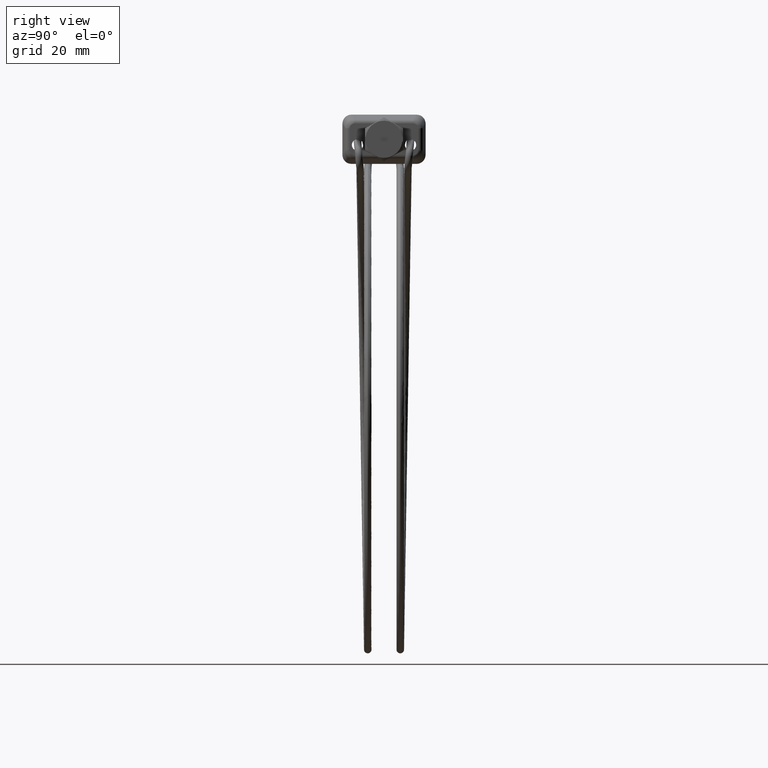
[diagram: clean part render]
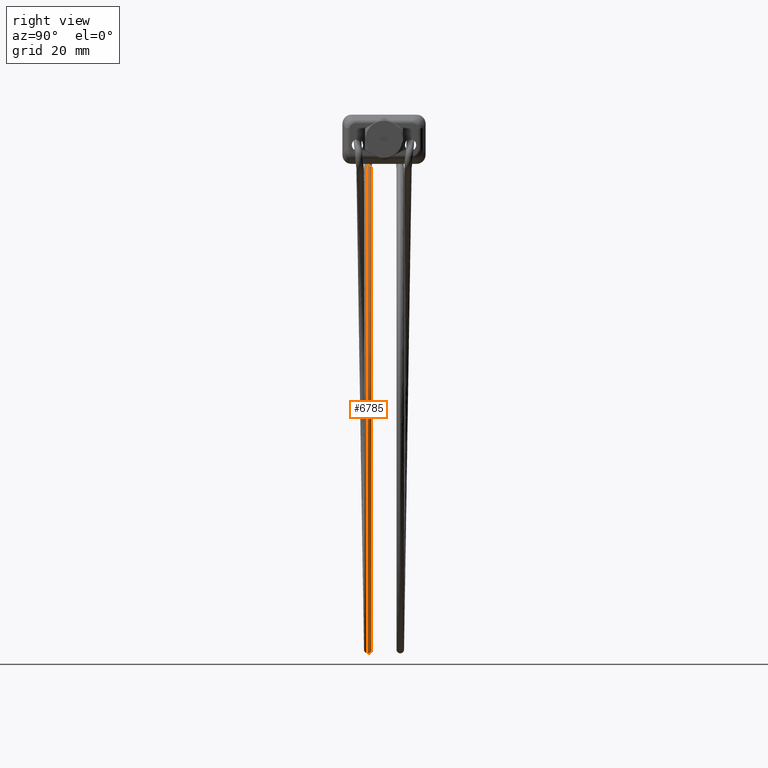
[diagram: same view with one face highlighted and labeled with its STEP entity id]
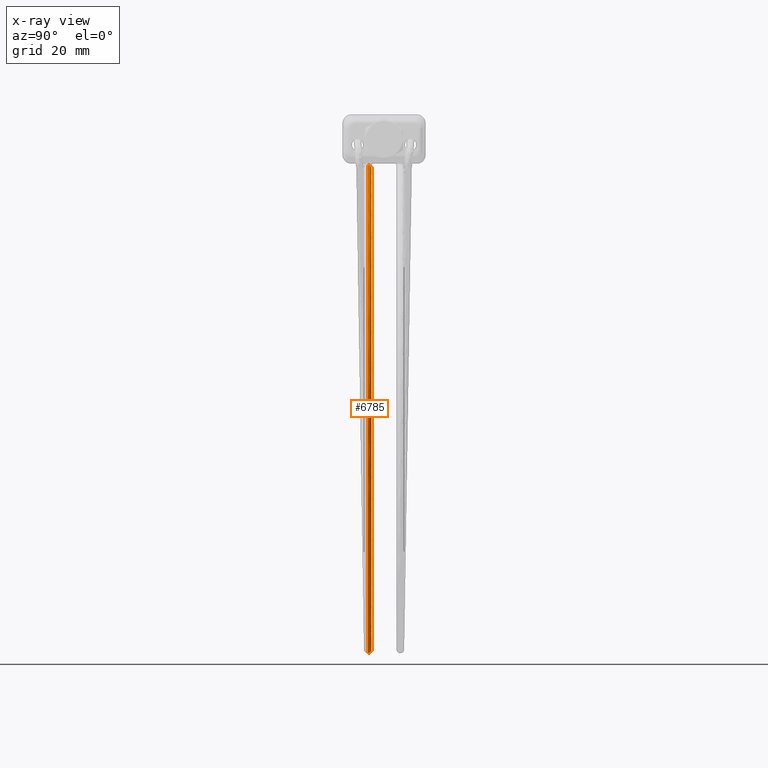
[diagram: x-ray of the same camera — body ghosted, the highlighted face saturated]
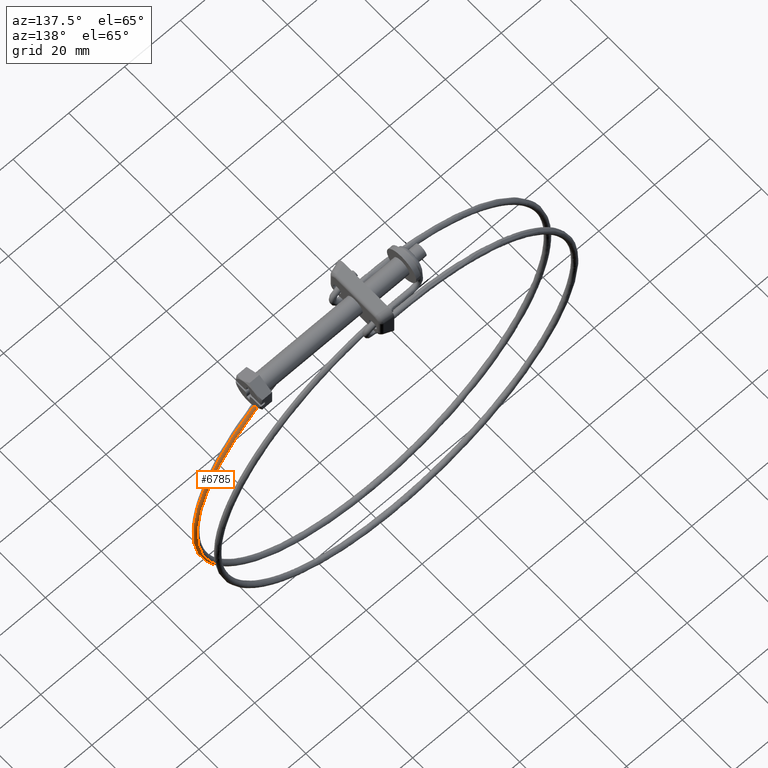
[diagram: same view with one face highlighted and labeled with its STEP entity id]
A machine part, right view. The second image highlights one B-rep face of the part: STEP entity #6785.
The next image is the same camera in x-ray: the body ghosted, the highlighted face saturated — about 0% of this face is hidden behind the body in this view.
A second angle (auxiliary view) of the same face is appended — the face is thin or edge-on in the first view.
In plain terms, the highlighted face is a freeform B-spline surface patch.
Its self-contained STEP definition (entity closure, byte-faithful):
#4858=CARTESIAN_POINT('',(-44.649999888239272,-4.300002000000000,-6.850001000000015));
#4859=VERTEX_POINT('',#4858);
#4875=CARTESIAN_POINT('',(-44.649999960482852,-3.364492663809099,-7.496699030150335));
#4876=VERTEX_POINT('',#4875);
#4877=CARTESIAN_POINT('',(-44.649999960482852,-3.364492663809098,-7.496699030150335));
#4878=CARTESIAN_POINT('',(-44.649999888267224,-3.608722925836405,-6.850001000000007));
#4879=CARTESIAN_POINT('',(-44.649999888239272,-4.300002000000000,-6.850001000000015));
#4887=(BOUNDED_CURVE()B_SPLINE_CURVE(2,(#4877,#4878,#4879),.UNSPECIFIED.,.F.,.U.)B_SPLINE_CURVE_WITH_KNOTS((3,3),(0.810000001076627,1.0),.UNSPECIFIED.)CURVE()GEOMETRIC_REPRESENTATION_ITEM()RATIONAL_B_SPLINE_CURVE((0.893152552465052,0.777401154963123,1.0))REPRESENTATION_ITEM(''));
#4888=EDGE_CURVE('',#4876,#4859,#4887,.T.);
#6664=CARTESIAN_POINT('',(-44.649999999855410,-3.364945210158729,-135.203131635922600));
#6665=VERTEX_POINT('',#6664);
#6666=CARTESIAN_POINT('',(-44.649999960482852,-3.364492663809099,-7.496699030150335));
#6667=CARTESIAN_POINT('',(19.605769809185944,-3.364492663809170,-7.496699069957926));
#6668=CARTESIAN_POINT('',(19.202041557125991,-3.364720358690777,-71.751114283731468));
#6669=CARTESIAN_POINT('',(18.803354992630947,-3.364945210158658,-135.203131635778900));
#6670=CARTESIAN_POINT('',(-44.649999999855410,-3.364945210158729,-135.203131635922550));
#6678=(BOUNDED_CURVE()B_SPLINE_CURVE(2,(#6666,#6667,#6668,#6669,#6670),.UNSPECIFIED.,.F.,.U.)B_SPLINE_CURVE_WITH_KNOTS((3,2,3),(-3.795101888693480,-2.0,-0.220236089797397),.UNSPECIFIED.)CURVE()GEOMETRIC_REPRESENTATION_ITEM()RATIONAL_B_SPLINE_CURVE((0.834864094028898,0.608677214417784,0.893152553776853,0.611107871231058,0.831036135744819))REPRESENTATION_ITEM(''));
#6679=EDGE_CURVE('',#4876,#6665,#6678,.T.);
#6707=CARTESIAN_POINT('',(-44.649999999978697,-4.300002000000001,-135.850000999999990));
#6708=VERTEX_POINT('',#6707);
#6718=CARTESIAN_POINT('',(-44.649999888239272,-4.300002000000000,-6.850001000000015));
#6719=CARTESIAN_POINT('',(20.256543984681063,-4.300002000000000,-6.850001112493310));
#6720=CARTESIAN_POINT('',(19.848726825220812,-4.300002000000000,-71.755263785778538));
#6721=CARTESIAN_POINT('',(19.446002414434385,-4.300001999999999,-135.850000999956790));
#6722=CARTESIAN_POINT('',(-44.649999999978704,-4.300002000000001,-135.850001000000020));
#6730=(BOUNDED_CURVE()B_SPLINE_CURVE(2,(#6718,#6719,#6720,#6721,#6722),.UNSPECIFIED.,.F.,.U.)B_SPLINE_CURVE_WITH_KNOTS((3,2,3),(-3.795101887331083,-2.0,-0.220236089795460),.UNSPECIFIED.)CURVE()GEOMETRIC_REPRESENTATION_ITEM()RATIONAL_B_SPLINE_CURVE((0.934738517126999,0.681493001458472,1.0,0.684214436432582,0.930452622266056))REPRESENTATION_ITEM(''));
#6731=EDGE_CURVE('',#4859,#6708,#6730,.T.);
#6738=CARTESIAN_POINT('',(-53.771343324392248,-4.305437355301836,-7.498210923616377));
#6739=CARTESIAN_POINT('',(20.318972810180536,-4.305437355301836,3.085724306198754));
#6740=CARTESIAN_POINT('',(19.848726825220798,-4.305437355301833,-71.755263785778496));
#6741=CARTESIAN_POINT('',(19.384081213831607,-4.305437355301836,-145.704936470271750));
#6742=CARTESIAN_POINT('',(-53.816452769126990,-4.305437355301836,-135.195330849812560));
#6743=CARTESIAN_POINT('',(-53.771343324392234,-4.302722740385489,-7.498210923616377));
#6744=CARTESIAN_POINT('',(20.318972810180547,-4.302722740385489,3.085724306198754));
#6745=CARTESIAN_POINT('',(19.848726825220808,-4.302722740385490,-71.755263785778567));
#6746=CARTESIAN_POINT('',(19.384081213831610,-4.302722740385489,-145.704936470271750));
#6747=CARTESIAN_POINT('',(-53.816452769126990,-4.302722740385491,-135.195330849812540));
#6748=CARTESIAN_POINT('',(-53.771343324392255,-3.608722931955907,-7.498210923616377));
#6749=CARTESIAN_POINT('',(20.318972810180536,-3.608722931955906,3.085724306198753));
#6750=CARTESIAN_POINT('',(19.848726825220805,-3.608722931955907,-71.755263785778510));
#6751=CARTESIAN_POINT('',(19.384081213831617,-3.608722931955906,-145.704936470271720));
#6752=CARTESIAN_POINT('',(-53.816452769126983,-3.608722931955907,-135.195330849812540));
#6753=CARTESIAN_POINT('',(-53.678399617732772,-3.360513175436376,-8.148841191054158));
#6754=CARTESIAN_POINT('',(19.656958791402385,-3.360513175436374,2.327246966644734));
#6755=CARTESIAN_POINT('',(19.191504469614344,-3.360513175436376,-71.751134281587980));
#6756=CARTESIAN_POINT('',(18.731593455298174,-3.360513175436377,-144.947282354506680));
#6757=CARTESIAN_POINT('',(-53.723049410983080,-3.360513175436375,-134.544766410113230));
#6758=CARTESIAN_POINT('',(-53.676916684696920,-3.356552945518747,-8.159222110348198));
#6759=CARTESIAN_POINT('',(19.646396242371999,-3.356552945518746,2.315145328521942));
#6760=CARTESIAN_POINT('',(19.181018372404857,-3.356552945518747,-71.751068394629030));
#6761=CARTESIAN_POINT('',(18.721182899410032,-3.356552945518748,-144.935193851062910));
#6762=CARTESIAN_POINT('',(-53.721559144127689,-3.356552945518745,-134.534386541112210));
#6770=(BOUNDED_SURFACE()B_SPLINE_SURFACE(2,2,((#6738,#6743,#6748,#6753,#6758),(#6739,#6744,#6749,#6754,#6759),(#6740,#6745,#6750,#6755,#6760),(#6741,#6746,#6751,#6756,#6761),(#6742,#6747,#6752,#6757,#6762)),.UNSPECIFIED.,.F.,.F.,.U.)B_SPLINE_SURFACE_WITH_KNOTS((3,2,3),(3,1,1,3),(0.0,118.243161586230000,235.567420683105690),(0.0,0.006319827581508,1.253206560562376,1.276605199716035),.UNSPECIFIED.)GEOMETRIC_REPRESENTATION_ITEM()RATIONAL_B_SPLINE_SURFACE(((0.993013918419158,0.991896083702628,0.770232156591907,0.887068239476554,0.889220358522805),(0.651276371160900,0.650543230039476,0.505163114627028,0.581791023531774,0.583202508564108),(1.002256478112381,1.001128239056190,0.777401156495024,0.895324700945268,0.897496851018661),(0.654003941107991,0.653267729563965,0.507278756758155,0.584227586228565,0.585644982613323),(0.987744267155861,0.986632364480179,0.766144746756325,0.882360812740553,0.884501511083992)))REPRESENTATION_ITEM('')SURFACE());
#6771=ORIENTED_EDGE('',*,*,#4888,.T.);
#6772=ORIENTED_EDGE('',*,*,#6731,.T.);
#6773=CARTESIAN_POINT('',(-44.649999999855410,-3.364945210158729,-135.203131635922600));
#6774=CARTESIAN_POINT('',(-44.649999999868037,-3.415054867142068,-135.335349654665490));
#6775=CARTESIAN_POINT('',(-44.649999999882482,-3.492539150088722,-135.457238662669110));
#6776=CARTESIAN_POINT('',(-44.649999999925498,-3.777820058850048,-135.742301835923310));
#6777=CARTESIAN_POINT('',(-44.649999999955362,-4.038116918531990,-135.850033442921700));
#6778=CARTESIAN_POINT('',(-44.649999999978697,-4.300002000000001,-135.850000999999990));
#6779=B_SPLINE_CURVE_WITH_KNOTS('',3,(#6773,#6774,#6775,#6776,#6777,#6778),.UNSPECIFIED.,.F.,.U.,(4,2,4),(0.807474354685363,0.875000000000000,1.0),.UNSPECIFIED.);
#6780=EDGE_CURVE('',#6665,#6708,#6779,.T.);
#6781=ORIENTED_EDGE('',*,*,#6780,.F.);
#6782=ORIENTED_EDGE('',*,*,#6679,.F.);
#6783=EDGE_LOOP('',(#6771,#6772,#6781,#6782));
#6784=FACE_OUTER_BOUND('',#6783,.T.);
#6785=ADVANCED_FACE('',(#6784),#6770,.T.);